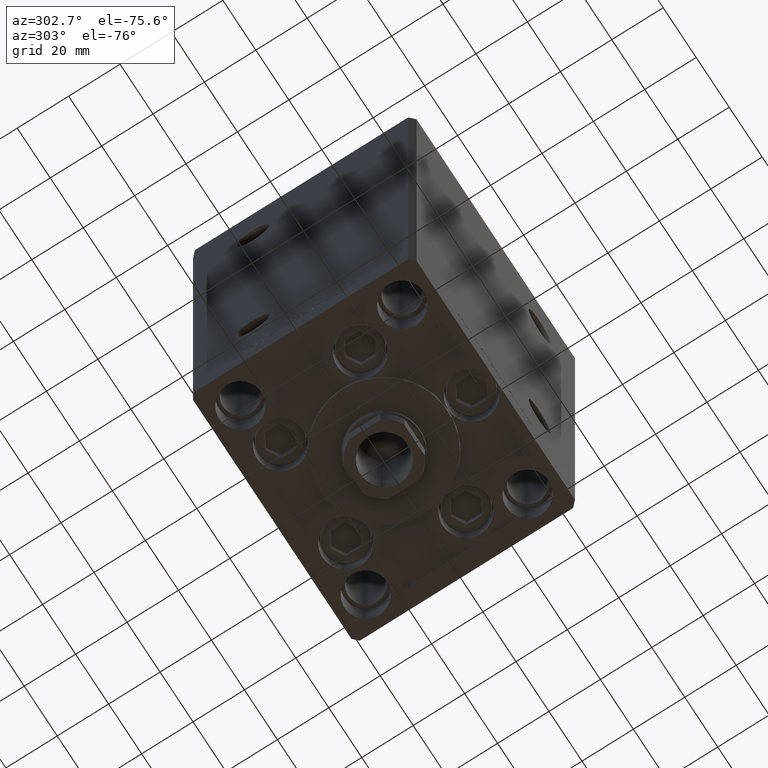
[diagram: clean part render]
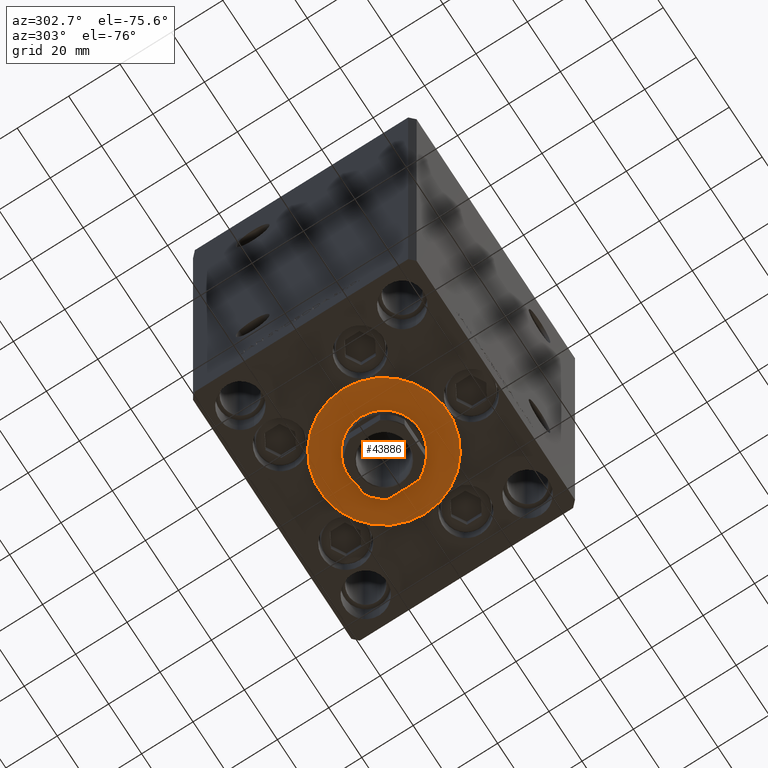
[diagram: same view with one face highlighted and labeled with its STEP entity id]
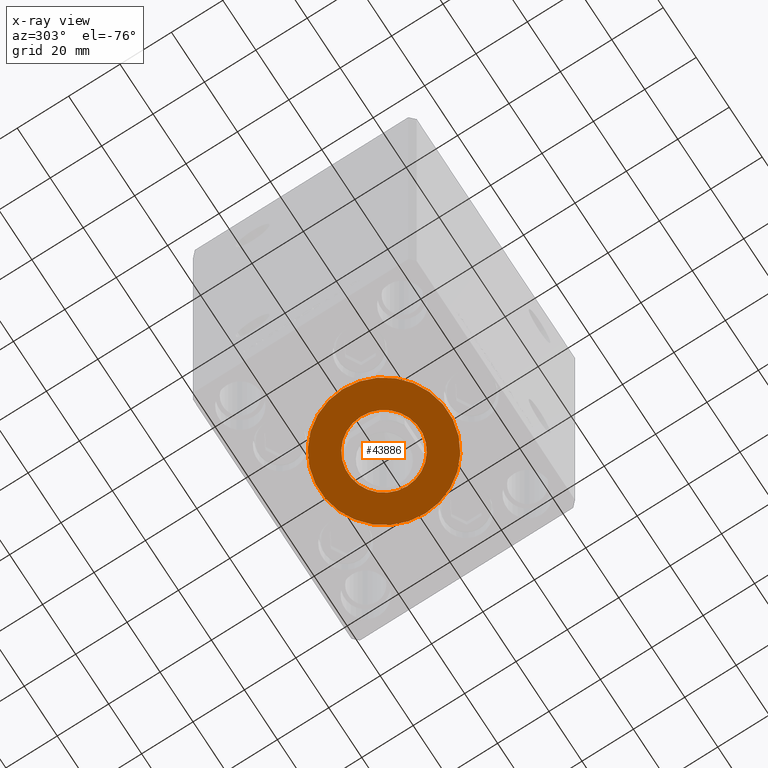
[diagram: x-ray of the same camera — body ghosted, the highlighted face saturated]
A machine part, auxiliary view. The second image highlights one B-rep face of the part: STEP entity #43886.
The next image is the same camera in x-ray: the body ghosted, the highlighted face saturated — about 0% of this face is hidden behind the body in this view.
In plain terms, the highlighted planar face has unit normal (0, 0, -1).
Its self-contained STEP definition (entity closure, byte-faithful):
#545 = CARTESIAN_POINT ( 'NONE',  ( 14.00000000000000000, -6.938893903907228378E-15, 2.000000000000000000 ) ) ;
#992 = DIRECTION ( 'NONE',  ( 0.000000000000000000, 0.000000000000000000, 1.000000000000000000 ) ) ;
#1773 = AXIS2_PLACEMENT_3D ( 'NONE', #36868, #14270, #21628 ) ;
#3742 = CIRCLE ( 'NONE', #21550, 14.00000000000000000 ) ;
#5299 = CARTESIAN_POINT ( 'NONE',  ( 0.000000000000000000, -6.938893903907228378E-15, 2.000000000000000000 ) ) ;
#5975 = CARTESIAN_POINT ( 'NONE',  ( 0.000000000000000000, -6.938893903907228378E-15, 2.000000000000000000 ) ) ;
#6862 = VERTEX_POINT ( 'NONE', #12253 ) ;
#8239 = PLANE ( 'NONE',  #26986 ) ;
#11364 = DIRECTION ( 'NONE',  ( 1.000000000000000000, 0.000000000000000000, 0.000000000000000000 ) ) ;
#12247 = EDGE_CURVE ( 'NONE', #38171, #45630, #37468, .T. ) ;
#12253 = CARTESIAN_POINT ( 'NONE',  ( -14.00000000000000000, -5.224388385100933937E-15, 2.000000000000000000 ) ) ;
#13399 = AXIS2_PLACEMENT_3D ( 'NONE', #19492, #19992, #11364 ) ;
#14270 = DIRECTION ( 'NONE',  ( 0.000000000000000000, 0.000000000000000000, 1.000000000000000000 ) ) ;
#18339 = ORIENTED_EDGE ( 'NONE', *, *, #44657, .F. ) ;
#18918 = AXIS2_PLACEMENT_3D ( 'NONE', #5975, #33383, #48874 ) ;
#19492 = CARTESIAN_POINT ( 'NONE',  ( 0.000000000000000000, -6.938893903907228378E-15, 2.000000000000000000 ) ) ;
#19992 = DIRECTION ( 'NONE',  ( 0.000000000000000000, 0.000000000000000000, 1.000000000000000000 ) ) ;
#20690 = CIRCLE ( 'NONE', #13399, 25.00000000000000000 ) ;
#21550 = AXIS2_PLACEMENT_3D ( 'NONE', #5299, #992, #32449 ) ;
#21628 = DIRECTION ( 'NONE',  ( 1.000000000000000000, 0.000000000000000000, 0.000000000000000000 ) ) ;
#21994 = VERTEX_POINT ( 'NONE', #545 ) ;
#24529 = EDGE_LOOP ( 'NONE', ( #18339, #30738 ) ) ;
#24986 = EDGE_CURVE ( 'NONE', #6862, #21994, #3742, .T. ) ;
#25941 = EDGE_CURVE ( 'NONE', #45630, #38171, #20690, .T. ) ;
#26986 = AXIS2_PLACEMENT_3D ( 'NONE', #47574, #47075, #46833 ) ;
#27528 = FACE_OUTER_BOUND ( 'NONE', #39808, .T. ) ;
#29424 = CIRCLE ( 'NONE', #18918, 14.00000000000000000 ) ;
#30738 = ORIENTED_EDGE ( 'NONE', *, *, #24986, .F. ) ;
#32318 = CARTESIAN_POINT ( 'NONE',  ( 25.00000000000000000, -3.877276906038844941E-15, 2.000000000000000000 ) ) ;
#32449 = DIRECTION ( 'NONE',  ( 1.000000000000000000, 0.000000000000000000, 0.000000000000000000 ) ) ;
#33383 = DIRECTION ( 'NONE',  ( 0.000000000000000000, 0.000000000000000000, 1.000000000000000000 ) ) ;
#36868 = CARTESIAN_POINT ( 'NONE',  ( 0.000000000000000000, -6.938893903907228378E-15, 2.000000000000000000 ) ) ;
#37468 = CIRCLE ( 'NONE', #1773, 25.00000000000000000 ) ;
#37933 = ORIENTED_EDGE ( 'NONE', *, *, #25941, .T. ) ;
#38171 = VERTEX_POINT ( 'NONE', #32318 ) ;
#39104 = CARTESIAN_POINT ( 'NONE',  ( -25.00000000000000000, -6.938893903907228378E-15, 2.000000000000000000 ) ) ;
#39131 = ORIENTED_EDGE ( 'NONE', *, *, #12247, .T. ) ;
#39808 = EDGE_LOOP ( 'NONE', ( #37933, #39131 ) ) ;
#43026 = FACE_BOUND ( 'NONE', #24529, .T. ) ;
#43886 = ADVANCED_FACE ( 'NONE', ( #43026, #27528 ), #8239, .T. ) ;
#44657 = EDGE_CURVE ( 'NONE', #21994, #6862, #29424, .T. ) ;
#45630 = VERTEX_POINT ( 'NONE', #39104 ) ;
#46833 = DIRECTION ( 'NONE',  ( 1.000000000000000000, 0.000000000000000000, -0.000000000000000000 ) ) ;
#47075 = DIRECTION ( 'NONE',  ( 0.000000000000000000, 0.000000000000000000, 1.000000000000000000 ) ) ;
#47574 = CARTESIAN_POINT ( 'NONE',  ( 0.000000000000000000, -6.938893903907228378E-15, 2.000000000000000000 ) ) ;
#48874 = DIRECTION ( 'NONE',  ( 1.000000000000000000, 0.000000000000000000, 0.000000000000000000 ) ) ;